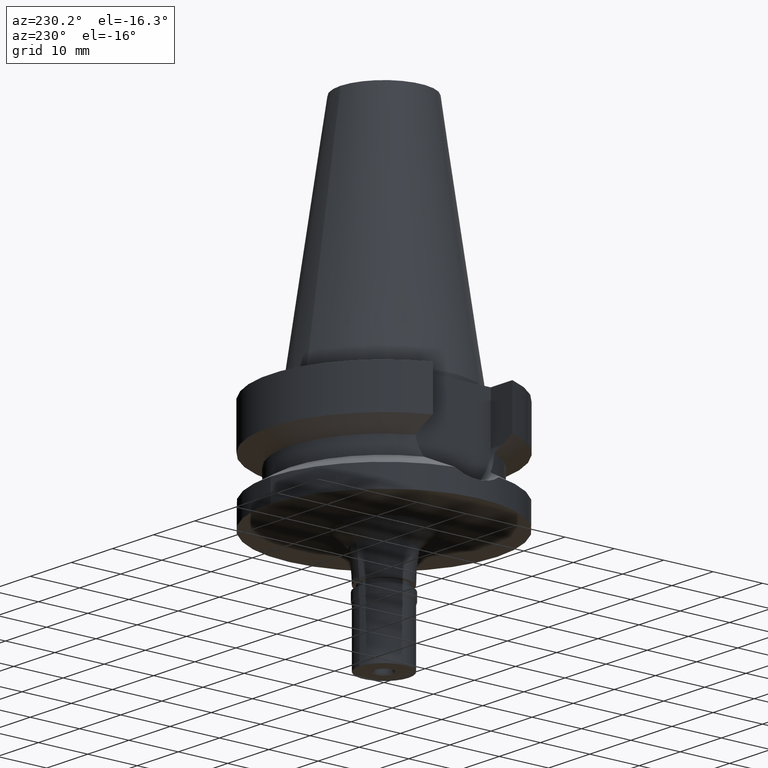
[diagram: clean part render]
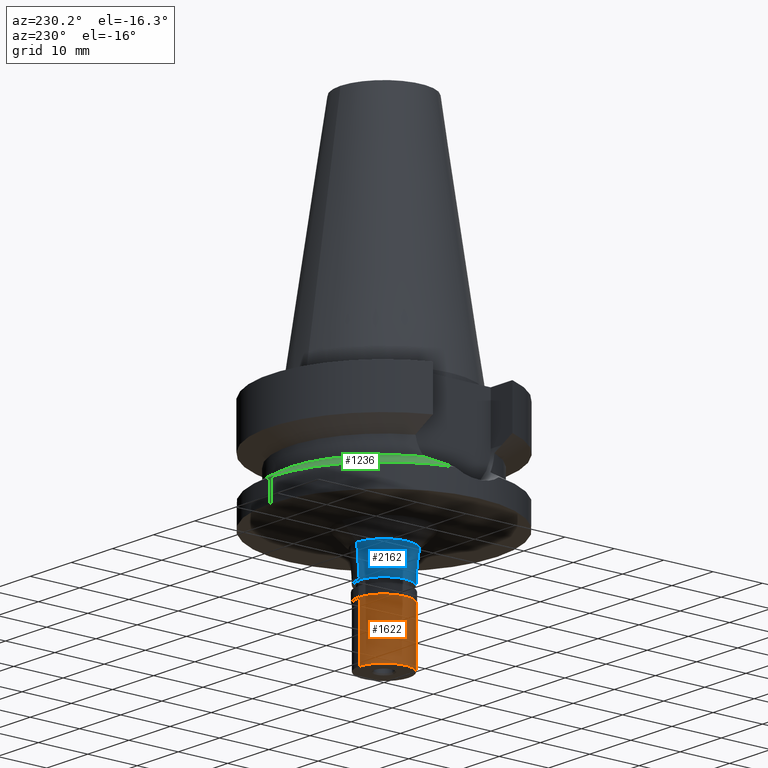
[diagram: same view with three faces highlighted in distinct colors, each labeled with its STEP entity id]
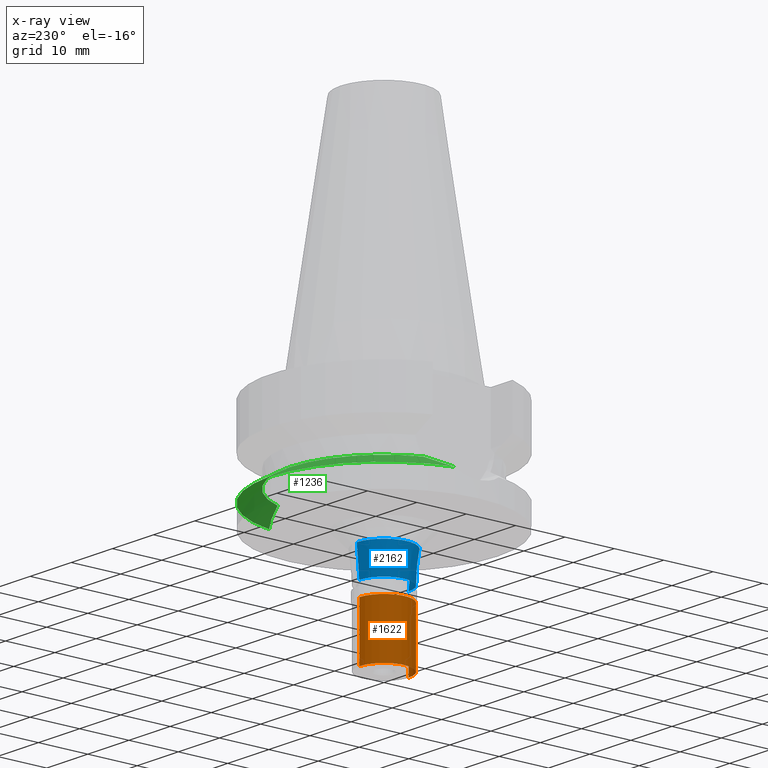
[diagram: x-ray of the same camera — body ghosted, the three highlighted faces saturated]
A machine part, auxiliary view with three faces highlighted in distinct colors.
The next image is the same camera in x-ray (body ghosted, the three faces saturated) — at least one of them is partly hidden behind the body in this view.
Their STEP definitions:

[orange] entity #1622 — the highlighted cylindrical surface (edge-blend (fillet) strip) has radius 5 mm, axis along (0, 0, 1).
#76 = CARTESIAN_POINT ( 'NONE',  ( 0.0000000000000000000, -5.000000000000000000, -13.00000000000000000 ) ) ;
#96 = EDGE_CURVE ( 'NONE', #218, #2465, #1716, .T. ) ;
#197 = CYLINDRICAL_SURFACE ( 'NONE', #2342, 5.000000000000000000 ) ;
#218 = VERTEX_POINT ( 'NONE', #1767 ) ;
#453 = CARTESIAN_POINT ( 'NONE',  ( 0.0000000000000000000, 5.000000000000000000, -13.00000000000000000 ) ) ;
#573 = CARTESIAN_POINT ( 'NONE',  ( 0.0000000000000000000, -5.000000000000000000, -1.800000000000000044 ) ) ;
#604 = EDGE_CURVE ( 'NONE', #218, #1472, #2886, .T. ) ;
#619 = CARTESIAN_POINT ( 'NONE',  ( 0.0000000000000000000, 5.000000000000000000, -1.800000000000000044 ) ) ;
#824 = DIRECTION ( 'NONE',  ( 0.0000000000000000000, 0.0000000000000000000, 1.000000000000000000 ) ) ;
#967 = CARTESIAN_POINT ( 'NONE',  ( 0.0000000000000000000, 5.000000000000000000, -1.800000000000000044 ) ) ;
#999 = LINE ( 'NONE', #967, #1014 ) ;
#1014 = VECTOR ( 'NONE', #2402, 1000.000000000000000 ) ;
#1034 = EDGE_CURVE ( 'NONE', #1472, #2696, #999, .T. ) ;
#1122 = CARTESIAN_POINT ( 'NONE',  ( 0.0000000000000000000, 0.0000000000000000000, -13.65000000000000036 ) ) ;
#1308 = DIRECTION ( 'NONE',  ( 0.0000000000000000000, 0.0000000000000000000, -1.000000000000000000 ) ) ;
#1472 = VERTEX_POINT ( 'NONE', #619 ) ;
#1502 = ORIENTED_EDGE ( 'NONE', *, *, #96, .F. ) ;
#1622 = ADVANCED_FACE ( 'NONE', ( #2298 ), #197, .T. ) ;
#1645 = DIRECTION ( 'NONE',  ( 0.0000000000000000000, 1.000000000000000000, 0.0000000000000000000 ) ) ;
#1675 = DIRECTION ( 'NONE',  ( 0.0000000000000000000, 0.0000000000000000000, 1.000000000000000000 ) ) ;
#1716 = LINE ( 'NONE', #573, #2421 ) ;
#1741 = CARTESIAN_POINT ( 'NONE',  ( 0.0000000000000000000, 0.0000000000000000000, -13.00000000000000000 ) ) ;
#1767 = CARTESIAN_POINT ( 'NONE',  ( 0.0000000000000000000, -5.000000000000000000, -1.800000000000000044 ) ) ;
#1778 = ORIENTED_EDGE ( 'NONE', *, *, #2946, .T. ) ;
#1870 = AXIS2_PLACEMENT_3D ( 'NONE', #1741, #1675, #1953 ) ;
#1953 = DIRECTION ( 'NONE',  ( 0.0000000000000000000, 1.000000000000000000, 0.0000000000000000000 ) ) ;
#2046 = EDGE_LOOP ( 'NONE', ( #1778, #1502, #2076, #2489 ) ) ;
#2048 = CARTESIAN_POINT ( 'NONE',  ( 0.0000000000000000000, 0.0000000000000000000, -1.800000000000000044 ) ) ;
#2076 = ORIENTED_EDGE ( 'NONE', *, *, #604, .T. ) ;
#2298 = FACE_OUTER_BOUND ( 'NONE', #2046, .T. ) ;
#2339 = AXIS2_PLACEMENT_3D ( 'NONE', #2048, #1308, #2506 ) ;
#2342 = AXIS2_PLACEMENT_3D ( 'NONE', #1122, #824, #1645 ) ;
#2402 = DIRECTION ( 'NONE',  ( 0.0000000000000000000, 0.0000000000000000000, -1.000000000000000000 ) ) ;
#2421 = VECTOR ( 'NONE', #2472, 1000.000000000000000 ) ;
#2465 = VERTEX_POINT ( 'NONE', #76 ) ;
#2472 = DIRECTION ( 'NONE',  ( 0.0000000000000000000, 0.0000000000000000000, -1.000000000000000000 ) ) ;
#2489 = ORIENTED_EDGE ( 'NONE', *, *, #1034, .T. ) ;
#2506 = DIRECTION ( 'NONE',  ( 0.0000000000000000000, -1.000000000000000000, 0.0000000000000000000 ) ) ;
#2696 = VERTEX_POINT ( 'NONE', #453 ) ;
#2815 = CIRCLE ( 'NONE', #1870, 5.000000000000000000 ) ;
#2886 = CIRCLE ( 'NONE', #2339, 5.000000000000000000 ) ;
#2946 = EDGE_CURVE ( 'NONE', #2696, #2465, #2815, .T. ) ;

[blue] entity #2162 — the highlighted conical surface has half-angle 5 deg.
#68 = DIRECTION ( 'NONE',  ( 0.0000000000000000000, -0.08715574274769373464, -0.9961946980917424366 ) ) ;
#120 = DIRECTION ( 'NONE',  ( 0.0000000000000000000, 1.000000000000000000, 0.0000000000000000000 ) ) ;
#179 = ORIENTED_EDGE ( 'NONE', *, *, #659, .T. ) ;
#192 = DIRECTION ( 'NONE',  ( 0.0000000000000000000, 0.0000000000000000000, 1.000000000000000000 ) ) ;
#234 = CIRCLE ( 'NONE', #1454, 5.524931981155999594 ) ;
#322 = DIRECTION ( 'NONE',  ( 0.0000000000000000000, -1.000000000000000000, 0.0000000000000000000 ) ) ;
#441 = AXIS2_PLACEMENT_3D ( 'NONE', #2671, #1276, #120 ) ;
#480 = CIRCLE ( 'NONE', #441, 5.000000000000000000 ) ;
#499 = ORIENTED_EDGE ( 'NONE', *, *, #1862, .F. ) ;
#530 = VECTOR ( 'NONE', #68, 1000.000000000000000 ) ;
#550 = DIRECTION ( 'NONE',  ( 0.0000000000000000000, 0.0000000000000000000, -1.000000000000000000 ) ) ;
#567 = EDGE_CURVE ( 'NONE', #892, #1783, #480, .T. ) ;
#659 = EDGE_CURVE ( 'NONE', #2227, #1714, #234, .T. ) ;
#892 = VERTEX_POINT ( 'NONE', #2817 ) ;
#901 = ORIENTED_EDGE ( 'NONE', *, *, #567, .T. ) ;
#960 = CARTESIAN_POINT ( 'NONE',  ( 0.0000000000000000000, 0.0000000000000000000, -28.00000000000000000 ) ) ;
#961 = EDGE_LOOP ( 'NONE', ( #901, #499, #179, #1868 ) ) ;
#1002 = LINE ( 'NONE', #1022, #1368 ) ;
#1022 = CARTESIAN_POINT ( 'NONE',  ( 0.0000000000000000000, -5.524931981155999594, -25.00000000000000000 ) ) ;
#1206 = DIRECTION ( 'NONE',  ( 0.0000000000000000000, 0.08715574274769373464, -0.9961946980917424366 ) ) ;
#1276 = DIRECTION ( 'NONE',  ( 0.0000000000000000000, 0.0000000000000000000, 1.000000000000000000 ) ) ;
#1368 = VECTOR ( 'NONE', #1206, 1000.000000000000000 ) ;
#1454 = AXIS2_PLACEMENT_3D ( 'NONE', #2434, #550, #322 ) ;
#1582 = CONICAL_SURFACE ( 'NONE', #2415, 5.262465990578000685, 0.08726646259969973729 ) ;
#1588 = CARTESIAN_POINT ( 'NONE',  ( 0.0000000000000000000, -5.524931981155999594, -25.00000000000000000 ) ) ;
#1699 = CARTESIAN_POINT ( 'NONE',  ( 0.0000000000000000000, -5.000000000000000000, -31.00000000000000000 ) ) ;
#1714 = VERTEX_POINT ( 'NONE', #2334 ) ;
#1783 = VERTEX_POINT ( 'NONE', #1699 ) ;
#1862 = EDGE_CURVE ( 'NONE', #2227, #1783, #1002, .T. ) ;
#1865 = EDGE_CURVE ( 'NONE', #1714, #892, #2167, .T. ) ;
#1868 = ORIENTED_EDGE ( 'NONE', *, *, #1865, .T. ) ;
#2159 = DIRECTION ( 'NONE',  ( 0.0000000000000000000, 1.000000000000000000, 0.0000000000000000000 ) ) ;
#2162 = ADVANCED_FACE ( 'NONE', ( #2922 ), #1582, .T. ) ;
#2167 = LINE ( 'NONE', #2403, #530 ) ;
#2227 = VERTEX_POINT ( 'NONE', #1588 ) ;
#2334 = CARTESIAN_POINT ( 'NONE',  ( 0.0000000000000000000, 5.524931981155999594, -25.00000000000000000 ) ) ;
#2403 = CARTESIAN_POINT ( 'NONE',  ( 0.0000000000000000000, 5.524931981155999594, -25.00000000000000000 ) ) ;
#2415 = AXIS2_PLACEMENT_3D ( 'NONE', #960, #192, #2159 ) ;
#2434 = CARTESIAN_POINT ( 'NONE',  ( 0.0000000000000000000, 0.0000000000000000000, -25.00000000000000000 ) ) ;
#2671 = CARTESIAN_POINT ( 'NONE',  ( 0.0000000000000000000, 0.0000000000000000000, -31.00000000000000000 ) ) ;
#2817 = CARTESIAN_POINT ( 'NONE',  ( 0.0000000000000000000, 5.000000000000000000, -31.00000000000000000 ) ) ;
#2922 = FACE_OUTER_BOUND ( 'NONE', #961, .T. ) ;

[green] entity #1236 — the highlighted conical surface has half-angle 60 deg.
#13 = ORIENTED_EDGE ( 'NONE', *, *, #1233, .F. ) ;
#18 = CARTESIAN_POINT ( 'NONE',  ( -18.57624872220198853, 6.503173323986779941, -15.71372017776992003 ) ) ;
#20 = CARTESIAN_POINT ( 'NONE',  ( -19.89857123033766584, 5.971878619631888263, -16.34832721881102202 ) ) ;
#60 = CARTESIAN_POINT ( 'NONE',  ( 22.27079617517595267, 4.695344515631148852, -17.49359063712451956 ) ) ;
#61 = CARTESIAN_POINT ( 'NONE',  ( -20.55893880403271368, 5.668033771167638513, -16.66628404551198628 ) ) ;
#118 = CARTESIAN_POINT ( 'NONE',  ( -21.04639564912879734, 5.420967606633268154, -16.90141497568515661 ) ) ;
#235 = CARTESIAN_POINT ( 'NONE',  ( 22.55786346208000026, 4.488072640470000430, -17.63279163029000074 ) ) ;
#236 = CARTESIAN_POINT ( 'NONE',  ( -19.27477000084288505, 6.229367662011818574, -16.04877386440565346 ) ) ;
#239 = CARTESIAN_POINT ( 'NONE',  ( -22.27790437987590266, 4.685437129885973384, -17.49706748129260347 ) ) ;
#338 = CIRCLE ( 'NONE', #765, 23.00000000000000000 ) ;
#346 = CARTESIAN_POINT ( 'NONE',  ( -19.50287498333305791, 6.138361269546106058, -16.15822634878232833 ) ) ;
#412 = CARTESIAN_POINT ( 'NONE',  ( -20.64409785173076273, 5.626374423242209488, -16.70733471157011252 ) ) ;
#423 = FACE_OUTER_BOUND ( 'NONE', #1331, .T. ) ;
#429 = CARTESIAN_POINT ( 'NONE',  ( -20.56714500445705696, 5.664042630044271220, -16.67023940852507735 ) ) ;
#457 = CARTESIAN_POINT ( 'NONE',  ( -20.58003457328145203, 5.657760775534448783, -16.67645236852075996 ) ) ;
#474 = CARTESIAN_POINT ( 'NONE',  ( -20.22047913402555253, 5.829432203429742110, -16.50317925048704382 ) ) ;
#541 = VERTEX_POINT ( 'NONE', #235 ) ;
#556 = CARTESIAN_POINT ( 'NONE',  ( 20.64919527207786132, 5.623835804983221109, -16.70979472610167349 ) ) ;
#577 = DIRECTION ( 'NONE',  ( 0.0000000000000000000, 1.000000000000000000, 0.0000000000000000000 ) ) ;
#747 = CARTESIAN_POINT ( 'NONE',  ( 21.45946470330003208, 5.194621484517302434, -17.10098992097108450 ) ) ;
#761 = CARTESIAN_POINT ( 'NONE',  ( 17.75736593456000278, 6.758398853743999624, -15.32339055352999857 ) ) ;
#765 = AXIS2_PLACEMENT_3D ( 'NONE', #1697, #1432, #2870 ) ;
#777 = CARTESIAN_POINT ( 'NONE',  ( 20.71975903641407157, 5.588917800085750898, -16.74381953932522293 ) ) ;
#821 = ORIENTED_EDGE ( 'NONE', *, *, #1319, .T. ) ;
#915 = CARTESIAN_POINT ( 'NONE',  ( 0.0000000000000000000, 23.00000000000000000, -17.63279163029000074 ) ) ;
#937 = AXIS2_PLACEMENT_3D ( 'NONE', #2915, #2429, #577 ) ;
#974 = CARTESIAN_POINT ( 'NONE',  ( 20.88248699140138243, 5.506884264658479466, -16.82231456627245691 ) ) ;
#1029 = CARTESIAN_POINT ( 'NONE',  ( 18.80562701571722783, 6.435312137257192866, -15.82267111574850027 ) ) ;
#1036 = CARTESIAN_POINT ( 'NONE',  ( -19.27145901608241019, 6.230667353173573453, -16.04718566850732486 ) ) ;
#1071 = EDGE_CURVE ( 'NONE', #1150, #541, #338, .T. ) ;
#1111 = VERTEX_POINT ( 'NONE', #1921 ) ;
#1113 = CARTESIAN_POINT ( 'NONE',  ( -19.32658731103081351, 6.208955161327025074, -16.07363106783727957 ) ) ;
#1130 = DIRECTION ( 'NONE',  ( 0.0000000000000000000, 0.0000000000000000000, -1.000000000000000000 ) ) ;
#1134 = ORIENTED_EDGE ( 'NONE', *, *, #1071, .F. ) ;
#1150 = VERTEX_POINT ( 'NONE', #915 ) ;
#1164 = AXIS2_PLACEMENT_3D ( 'NONE', #1395, #1130, #1828 ) ;
#1198 = CARTESIAN_POINT ( 'NONE',  ( -19.78328776892033147, 6.021651293259151494, -16.29290655536503252 ) ) ;
#1223 = CARTESIAN_POINT ( 'NONE',  ( 17.75736593456000278, 6.758398853743999624, -15.32339055352999857 ) ) ;
#1233 = EDGE_CURVE ( 'NONE', #1111, #1150, #1842, .T. ) ;
#1236 = ADVANCED_FACE ( 'NONE', ( #423 ), #2741, .T. ) ;
#1257 = CARTESIAN_POINT ( 'NONE',  ( -21.31889375515417484, 5.274114906254664170, -17.03301015039365396 ) ) ;
#1278 = CARTESIAN_POINT ( 'NONE',  ( -19.38622727024744208, 6.185272681567900221, -16.10224548289518509 ) ) ;
#1319 = EDGE_CURVE ( 'NONE', #1111, #1562, #1418, .T. ) ;
#1331 = EDGE_LOOP ( 'NONE', ( #2221, #2484, #1134, #13, #821 ) ) ;
#1354 = CARTESIAN_POINT ( 'NONE',  ( -17.75736593456000278, 6.758398853743999624, -15.32339055352999857 ) ) ;
#1357 = CARTESIAN_POINT ( 'NONE',  ( -21.66393474030303778, 5.073665578413932842, -17.19984901370881047 ) ) ;
#1359 = AXIS2_PLACEMENT_3D ( 'NONE', #1854, #2778, #2317 ) ;
#1391 = EDGE_CURVE ( 'NONE', #541, #1848, #2333, .T. ) ;
#1395 = CARTESIAN_POINT ( 'NONE',  ( 0.0000000000000000000, 1.022848384030000006E-14, -16.47809109191000232 ) ) ;
#1418 = B_SPLINE_CURVE_WITH_KNOTS ( 'NONE', 3,
 ( #2571, #2341, #239, #2071, #1610, #2553, #1630, #1805, #1357, #2300, #1257, #118, #2249, #2254, #412, #1578, #457, #429, #61, #2106, #474, #20, #1198, #2561, #346, #1278, #1113, #2758, #2166, #236, #1036, #18, #2409, #2427 ),
 .UNSPECIFIED., .F., .F.,
 ( 4, 2, 1, 1, 2, 2, 2, 1, 1, 1, 1, 2, 2, 2, 2, 1, 1, 1, 1, 2, 2, 4 ),
 ( 0.0000000000000000000, 0.1249999999999938383, 0.1874999999999904798, 0.2187499999999875655, 0.2343749999999847622, 0.2499999999999819589, 0.3749999999999584777, 0.4374999999999467648, 0.4687499999999409916, 0.4843749999999381051, 0.4921874999999356071, 0.4960937499999342193, 0.4999999999999328870, 0.6249999999999131806, 0.6874999999999031886, 0.7187499999998981925, 0.7343749999998956390, 0.7421874999998948619, 0.7460937499998951949, 0.7480468749998953060, 0.7499999999998954170, 1.000000000000000000 ),
 .UNSPECIFIED. ) ;
#1432 = DIRECTION ( 'NONE',  ( 0.0000000000000000000, 0.0000000000000000000, -1.000000000000000000 ) ) ;
#1474 = CARTESIAN_POINT ( 'NONE',  ( 20.57998481890234643, 5.657811042372649979, -16.67642812249193796 ) ) ;
#1504 = CARTESIAN_POINT ( 'NONE',  ( 19.73799502980001108, 6.066788491719708354, -16.27059457723866487 ) ) ;
#1562 = VERTEX_POINT ( 'NONE', #1354 ) ;
#1578 = CARTESIAN_POINT ( 'NONE',  ( -20.59933170863250851, 5.648340130171034090, -16.68575415139210705 ) ) ;
#1610 = CARTESIAN_POINT ( 'NONE',  ( -21.93230817305593305, 4.910039656900369920, -17.32969877489704302 ) ) ;
#1630 = CARTESIAN_POINT ( 'NONE',  ( -21.72805381603099661, 5.035211537029088191, -17.23086493227715010 ) ) ;
#1697 = CARTESIAN_POINT ( 'NONE',  ( 0.0000000000000000000, 1.022848384030000006E-14, -17.63279163029000074 ) ) ;
#1805 = CARTESIAN_POINT ( 'NONE',  ( -21.68640752660378013, 5.060246031235015707, -17.21071895525150808 ) ) ;
#1828 = DIRECTION ( 'NONE',  ( 0.0000000000000000000, -1.000000000000000000, 0.0000000000000000000 ) ) ;
#1842 = CIRCLE ( 'NONE', #1359, 23.00000000000001066 ) ;
#1848 = VERTEX_POINT ( 'NONE', #1223 ) ;
#1854 = CARTESIAN_POINT ( 'NONE',  ( 0.0000000000000000000, 1.022848384030000006E-14, -17.63279163029000074 ) ) ;
#1921 = CARTESIAN_POINT ( 'NONE',  ( -22.55786346208000026, 4.488072640470000430, -17.63279163029000074 ) ) ;
#2071 = CARTESIAN_POINT ( 'NONE',  ( -22.04955340332936586, 4.835045979542746508, -17.38646694628049261 ) ) ;
#2106 = CARTESIAN_POINT ( 'NONE',  ( -20.40315942754918765, 5.743696485512975514, -16.59120066005510452 ) ) ;
#2166 = CARTESIAN_POINT ( 'NONE',  ( -19.28344670442129782, 6.225959181575003498, -16.05293592157039129 ) ) ;
#2221 = ORIENTED_EDGE ( 'NONE', *, *, #2455, .F. ) ;
#2249 = CARTESIAN_POINT ( 'NONE',  ( -20.90540333334299916, 5.495122715833899996, -16.83335727669377491 ) ) ;
#2254 = CARTESIAN_POINT ( 'NONE',  ( -20.73258828365005968, 5.582512920693047498, -16.75000143250549911 ) ) ;
#2300 = CARTESIAN_POINT ( 'NONE',  ( -21.48790821065408707, 5.178165579350508807, -17.11471330250028089 ) ) ;
#2317 = DIRECTION ( 'NONE',  ( -0.9807766722643714852, 0.1951335930638943839, 0.0000000000000000000 ) ) ;
#2333 = B_SPLINE_CURVE_WITH_KNOTS ( 'NONE', 3,
 ( #2443, #60, #2881, #747, #2902, #974, #777, #556, #2862, #1474, #1504, #1029, #761 ),
 .UNSPECIFIED., .F., .F.,
 ( 4, 2, 1, 1, 1, 2, 2, 4 ),
 ( 0.0000000000000000000, 0.2499999999999955036, 0.3749999999999940048, 0.4374999999999927836, 0.4687499999999934497, 0.4843749999999938938, 0.4999999999999943379, 1.000000000000000000 ),
 .UNSPECIFIED. ) ;
#2341 = CARTESIAN_POINT ( 'NONE',  ( -22.42195112696040127, 4.586205746689362428, -17.56688676096097268 ) ) ;
#2409 = CARTESIAN_POINT ( 'NONE',  ( -18.07214257287909120, 6.661380894831059329, -15.47331680737953619 ) ) ;
#2417 = CIRCLE ( 'NONE', #937, 19.00000000000000000 ) ;
#2427 = CARTESIAN_POINT ( 'NONE',  ( -17.75736593456000278, 6.758398853743999624, -15.32339055352999857 ) ) ;
#2429 = DIRECTION ( 'NONE',  ( 0.0000000000000000000, 0.0000000000000000000, 1.000000000000000000 ) ) ;
#2443 = CARTESIAN_POINT ( 'NONE',  ( 22.55786346208000026, 4.488072640470000430, -17.63279163029000074 ) ) ;
#2455 = EDGE_CURVE ( 'NONE', #1848, #1562, #2417, .T. ) ;
#2484 = ORIENTED_EDGE ( 'NONE', *, *, #1391, .F. ) ;
#2553 = CARTESIAN_POINT ( 'NONE',  ( -21.79013828748221115, 4.997657247753530818, -17.26090040983093132 ) ) ;
#2561 = CARTESIAN_POINT ( 'NONE',  ( -19.59834816408556435, 6.099009162863424649, -16.20407058086506069 ) ) ;
#2571 = CARTESIAN_POINT ( 'NONE',  ( -22.55786346208000026, 4.488072640470000430, -17.63279163029000074 ) ) ;
#2741 = CONICAL_SURFACE ( 'NONE', #1164, 21.00000000000000000, 1.047197551196400456 ) ;
#2758 = CARTESIAN_POINT ( 'NONE',  ( -19.29643825175497795, 6.220850138948687658, -16.05916786477975222 ) ) ;
#2778 = DIRECTION ( 'NONE',  ( 0.0000000000000000000, 0.0000000000000000000, -1.000000000000000000 ) ) ;
#2862 = CARTESIAN_POINT ( 'NONE',  ( 20.60196982647622121, 5.647060618251806829, -16.68702630480543547 ) ) ;
#2870 = DIRECTION ( 'NONE',  ( 0.0000000000000000000, 1.000000000000000000, 0.0000000000000000000 ) ) ;
#2881 = CARTESIAN_POINT ( 'NONE',  ( 21.96031307461795024, 4.898397857228174779, -17.34322109217949759 ) ) ;
#2902 = CARTESIAN_POINT ( 'NONE',  ( 21.20025958752084705, 5.340642688018855111, -16.97570876127018735 ) ) ;
#2915 = CARTESIAN_POINT ( 'NONE',  ( 0.0000000000000000000, 1.022848384030000006E-14, -15.32339055352999857 ) ) ;